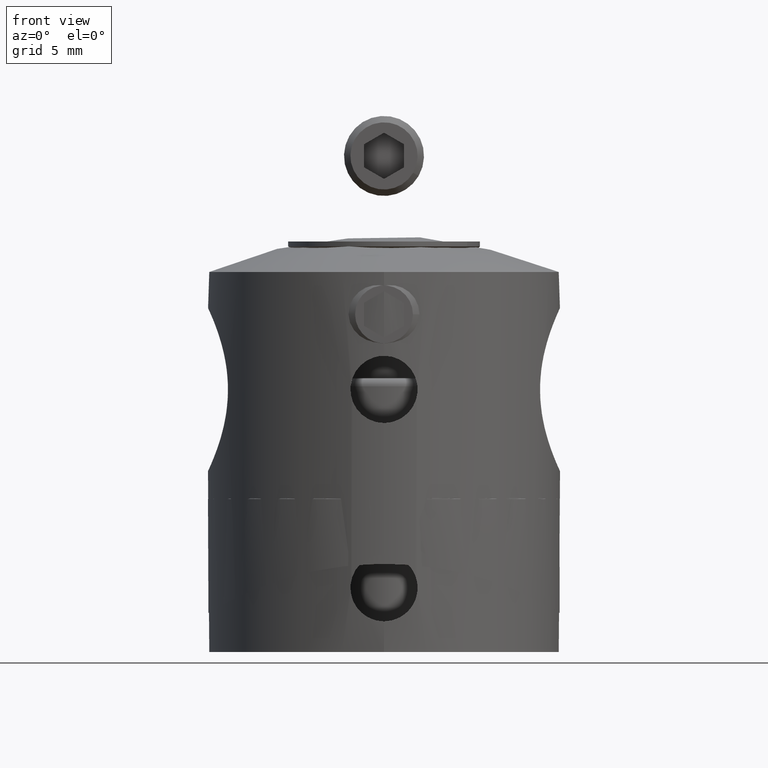
[diagram: clean part render]
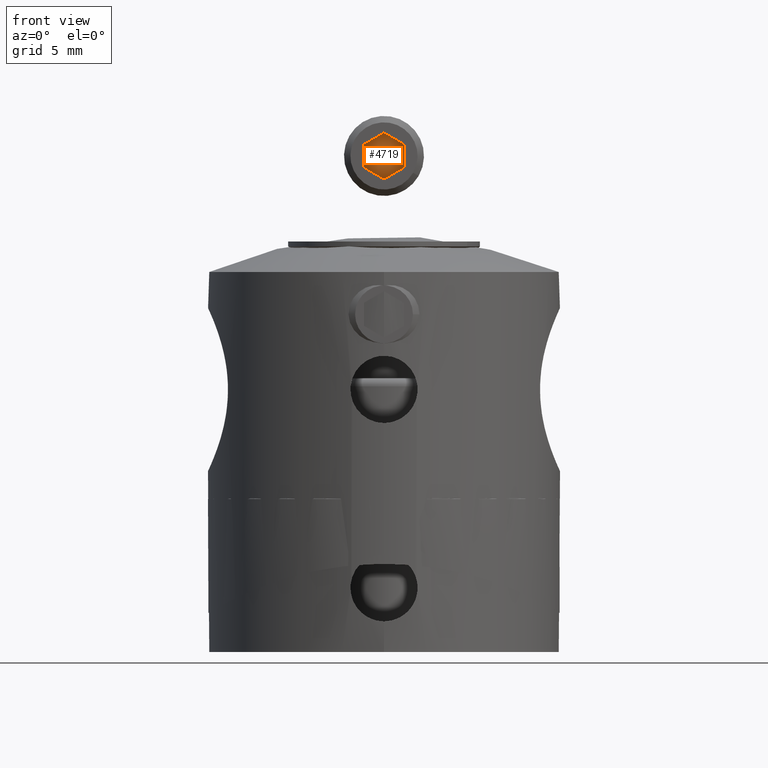
[diagram: same view with one face highlighted and labeled with its STEP entity id]
A machine part, front view. The second image highlights one B-rep face of the part: STEP entity #4719.
In plain terms, the highlighted planar face has unit normal (0, -1, 0).
Its self-contained STEP definition (entity closure, byte-faithful):
#65 = CARTESIAN_POINT ( 'NONE',  ( 0.7216878364870316087, 1.250000000000000000, -2.500000000000000000 ) ) ;
#268 = VECTOR ( 'NONE', #3478, 1000.000000000000000 ) ;
#357 = VECTOR ( 'NONE', #5317, 1000.000000000000114 ) ;
#469 = ORIENTED_EDGE ( 'NONE', *, *, #3014, .T. ) ;
#577 = CARTESIAN_POINT ( 'NONE',  ( 0.7216878364870319418, -1.250000000000000666, -2.500000000000000000 ) ) ;
#974 = ORIENTED_EDGE ( 'NONE', *, *, #2265, .T. ) ;
#1368 = VECTOR ( 'NONE', #2877, 1000.000000000000000 ) ;
#1427 = CARTESIAN_POINT ( 'NONE',  ( -1.443375672974064328, 2.221616376872682286E-16, -2.500000000000000000 ) ) ;
#1639 = CARTESIAN_POINT ( 'NONE',  ( -0.7216878364870319418, -1.250000000000000222, -2.500000000000000000 ) ) ;
#1682 = EDGE_LOOP ( 'NONE', ( #469, #2006, #3774, #3102, #5024, #974 ) ) ;
#1700 = EDGE_CURVE ( 'NONE', #1764, #5556, #3175, .T. ) ;
#1727 = FACE_OUTER_BOUND ( 'NONE', #1682, .T. ) ;
#1760 = VECTOR ( 'NONE', #3449, 1000.000000000000114 ) ;
#1764 = VERTEX_POINT ( 'NONE', #3408 ) ;
#1779 = EDGE_CURVE ( 'NONE', #2064, #6006, #1913, .T. ) ;
#1913 = LINE ( 'NONE', #5358, #1760 ) ;
#1988 = EDGE_CURVE ( 'NONE', #2922, #2064, #3847, .T. ) ;
#2006 = ORIENTED_EDGE ( 'NONE', *, *, #1700, .T. ) ;
#2064 = VERTEX_POINT ( 'NONE', #5407 ) ;
#2115 = CARTESIAN_POINT ( 'NONE',  ( 0.7216878364870316087, 1.250000000000000000, -2.500000000000000000 ) ) ;
#2265 = EDGE_CURVE ( 'NONE', #6006, #4746, #3913, .T. ) ;
#2584 = PLANE ( 'NONE',  #5994 ) ;
#2696 = CARTESIAN_POINT ( 'NONE',  ( 1.443375672974064328, -7.699332378104636821E-16, -2.500000000000000000 ) ) ;
#2877 = DIRECTION ( 'NONE',  ( 0.4999999999999999445, -0.8660254037844387076, 0.000000000000000000 ) ) ;
#2922 = VERTEX_POINT ( 'NONE', #2115 ) ;
#2968 = CARTESIAN_POINT ( 'NONE',  ( 1.443375672974064328, -7.699332378104636821E-16, -2.500000000000000000 ) ) ;
#3014 = EDGE_CURVE ( 'NONE', #4746, #1764, #5764, .T. ) ;
#3102 = ORIENTED_EDGE ( 'NONE', *, *, #1988, .T. ) ;
#3175 = LINE ( 'NONE', #577, #357 ) ;
#3408 = CARTESIAN_POINT ( 'NONE',  ( 0.7216878364870319418, -1.250000000000000666, -2.500000000000000000 ) ) ;
#3423 = EDGE_CURVE ( 'NONE', #5556, #2922, #5086, .T. ) ;
#3449 = DIRECTION ( 'NONE',  ( -0.5000000000000002220, -0.8660254037844384856, 0.000000000000000000 ) ) ;
#3478 = DIRECTION ( 'NONE',  ( -1.000000000000000000, 0.000000000000000000, 0.000000000000000000 ) ) ;
#3510 = DIRECTION ( 'NONE',  ( -0.000000000000000000, 0.000000000000000000, 1.000000000000000000 ) ) ;
#3538 = VECTOR ( 'NONE', #4166, 1000.000000000000114 ) ;
#3774 = ORIENTED_EDGE ( 'NONE', *, *, #3423, .T. ) ;
#3847 = LINE ( 'NONE', #65, #268 ) ;
#3913 = LINE ( 'NONE', #1427, #1368 ) ;
#3973 = CARTESIAN_POINT ( 'NONE',  ( -1.443375672974064328, 2.221616376872682286E-16, -2.500000000000000000 ) ) ;
#4166 = DIRECTION ( 'NONE',  ( -0.4999999999999999445, 0.8660254037844385966, 0.000000000000000000 ) ) ;
#4463 = DIRECTION ( 'NONE',  ( 1.000000000000000000, 0.000000000000000000, 0.000000000000000000 ) ) ;
#4501 = DIRECTION ( 'NONE',  ( 1.000000000000000000, -3.004629197474320035E-16, 0.000000000000000000 ) ) ;
#4719 = ADVANCED_FACE ( 'NONE', ( #1727 ), #2584, .T. ) ;
#4746 = VERTEX_POINT ( 'NONE', #5898 ) ;
#4806 = VECTOR ( 'NONE', #4501, 1000.000000000000000 ) ;
#4941 = CARTESIAN_POINT ( 'NONE',  ( 0.7216878364870318308, -1.250000000000000666, -2.500000000000000000 ) ) ;
#5024 = ORIENTED_EDGE ( 'NONE', *, *, #1779, .T. ) ;
#5086 = LINE ( 'NONE', #2696, #3538 ) ;
#5317 = DIRECTION ( 'NONE',  ( 0.5000000000000002220, 0.8660254037844384856, 0.000000000000000000 ) ) ;
#5358 = CARTESIAN_POINT ( 'NONE',  ( -0.7216878364870319418, 1.250000000000000000, -2.500000000000000000 ) ) ;
#5407 = CARTESIAN_POINT ( 'NONE',  ( -0.7216878364870319418, 1.250000000000000000, -2.500000000000000000 ) ) ;
#5556 = VERTEX_POINT ( 'NONE', #2968 ) ;
#5764 = LINE ( 'NONE', #1639, #4806 ) ;
#5898 = CARTESIAN_POINT ( 'NONE',  ( -0.7216878364870319418, -1.250000000000000222, -2.500000000000000000 ) ) ;
#5994 = AXIS2_PLACEMENT_3D ( 'NONE', #4941, #3510, #4463 ) ;
#6006 = VERTEX_POINT ( 'NONE', #3973 ) ;